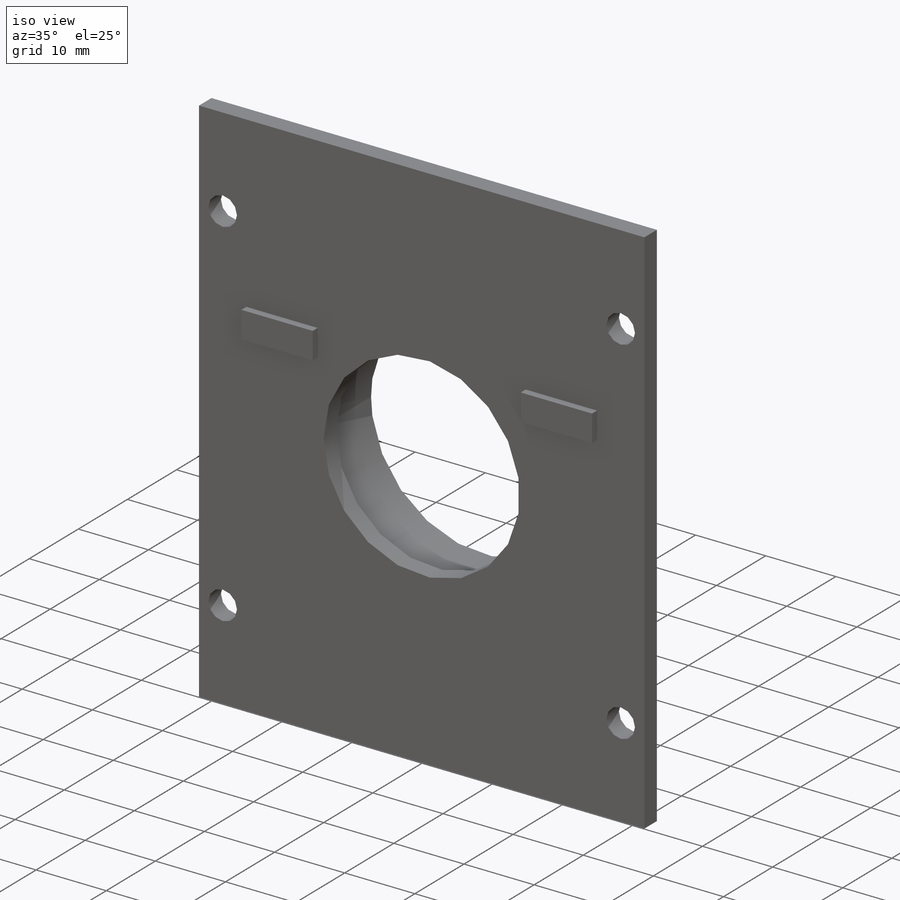
[diagram: iso view]
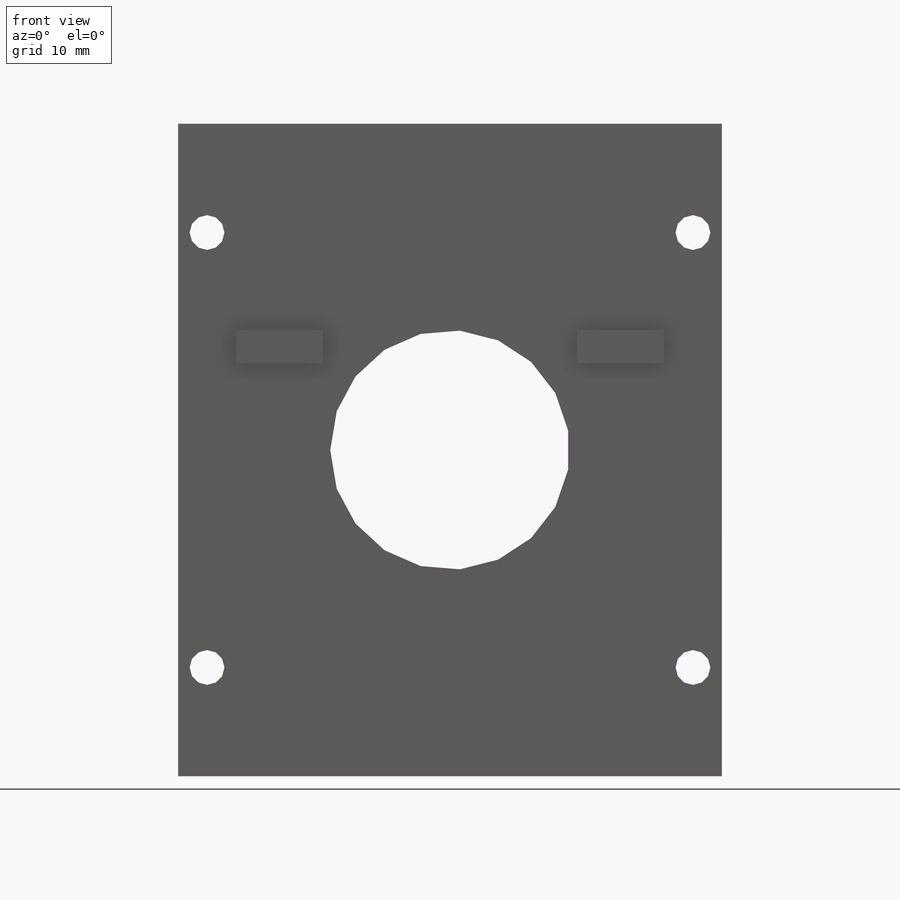
[diagram: front view]
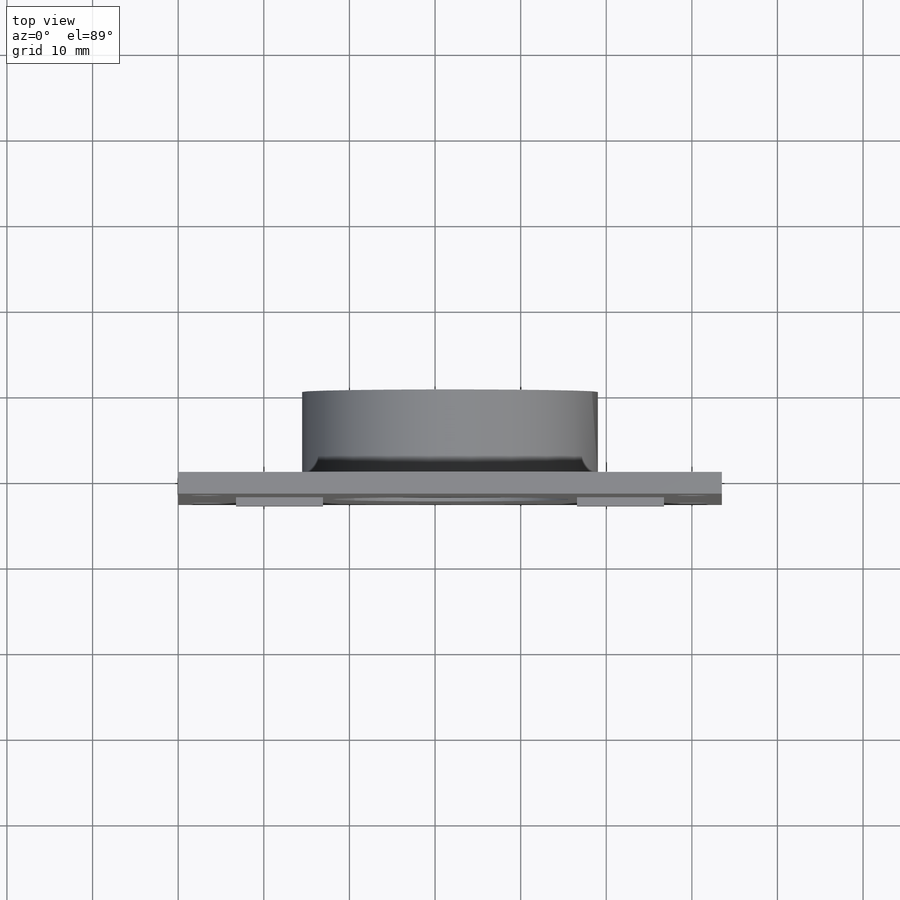
[diagram: top view]
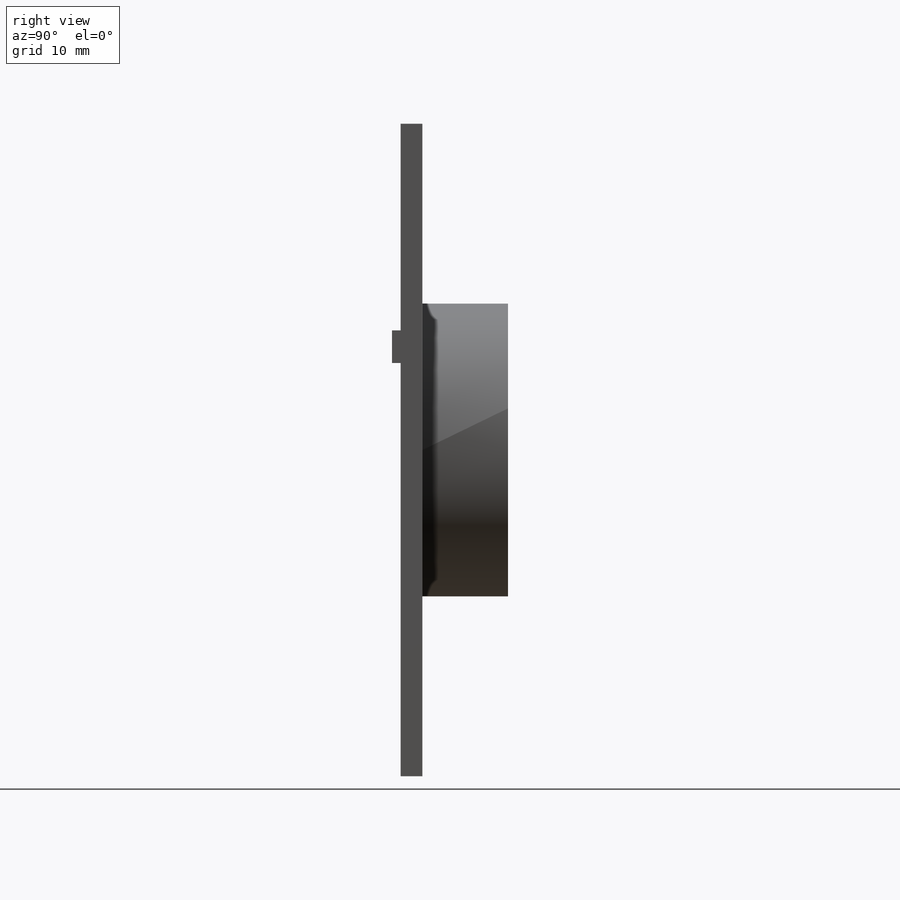
[diagram: right view]
SOLIDWORKS PART (.sldprt)
format: sldprt  version: not decoded by parser v0  size: 223,232 bytes
history: native  units: mm
features: sketch x5, extrude x3, plane x2, cut_extrude x2, material x1 (+13 scaffold rows collapsed)
feature tree (26):
  scaffold x13  (default folders/planes/origin — collapsed)
  material  "Material <not specified>"
  sketch  "Sketch3"
  extrude  "Boss-Extrude2"  Depth=2.54mm
  plane  "Plane2"  Offset=0mm
  sketch  "Sketch4"  dims[D1=15.0mm]
  extrude  "Boss-Extrude3"  Depth=10mm
  sketch  "Sketch5"  dims[D1=15.0mm]
  cut_extrude  "Cut-Extrude1"  Depth=10.0076mm
  plane  "Plane3"  Offset=0mm
  sketch  "Sketch8"  dims[D1=12.7mm]
  cut_extrude  "Cut-Extrude2"  [1 undecoded]
  sketch  "Sketch9"  dims[c1.D1=24.13mm c1.D2=3.81mm c1.D3=10.16mm c1.D4=10.16mm c2.D1=16.9164mm c2.D2=16.9164mm]
  extrude  "Boss-Extrude4"  Depth=1.016mm
decode coverage: 8 of 10 modeling features carry decoded parameters
note: 1 parameter value undecoded
note: suppression state not decoded; provenance and decode notes live in map.json
